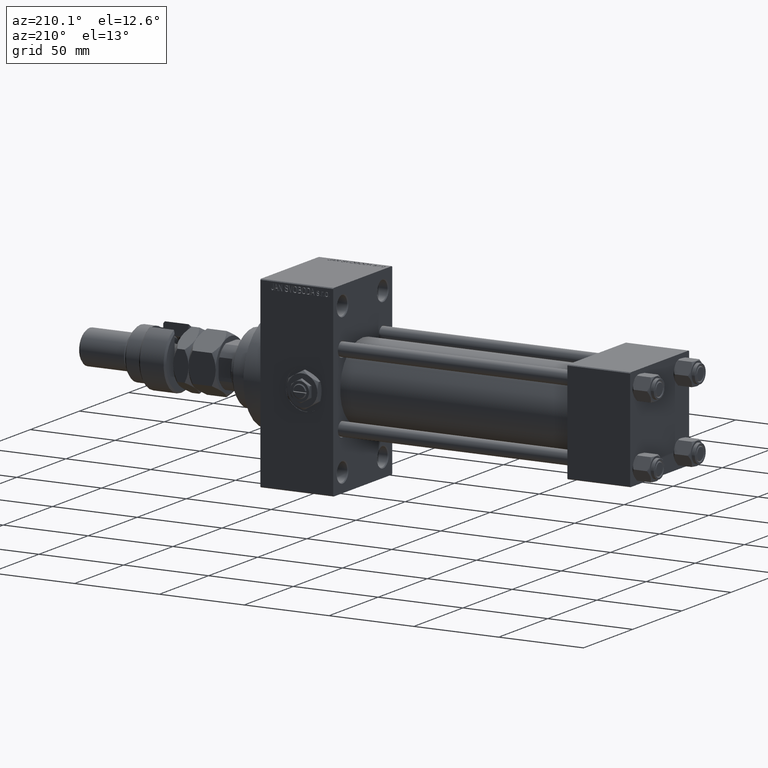
[diagram: clean part render]
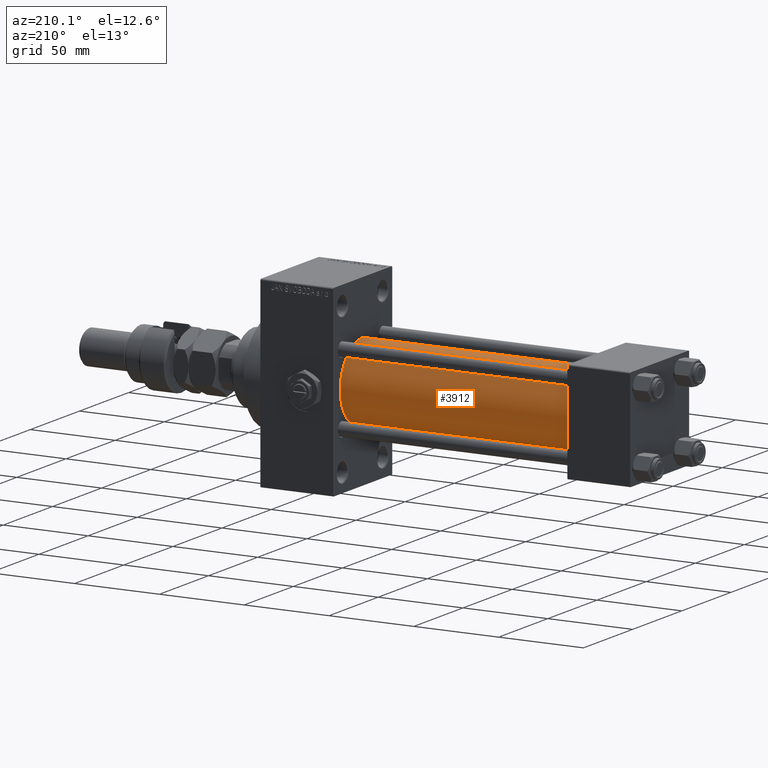
[diagram: same view with one face highlighted and labeled with its STEP entity id]
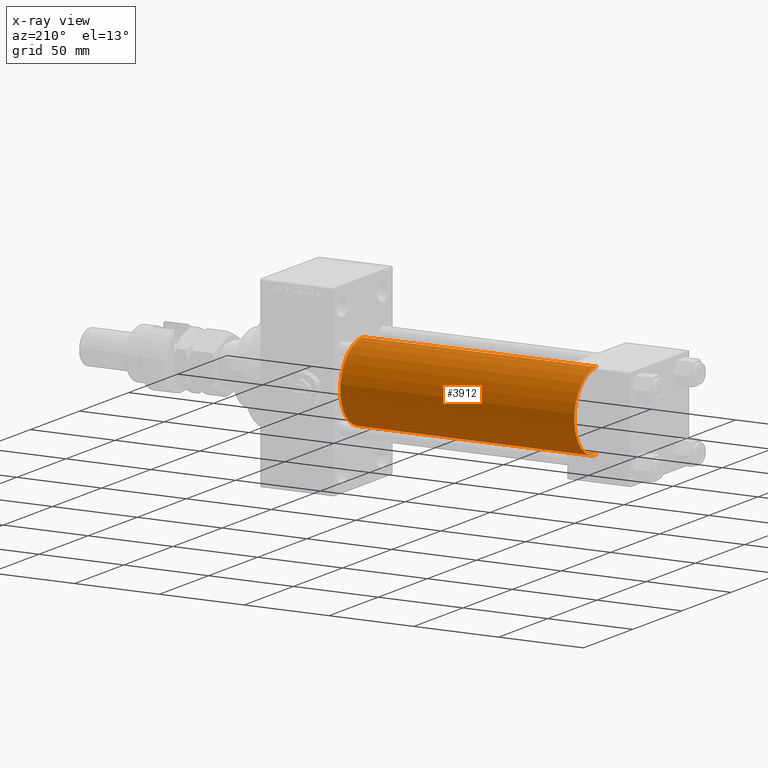
[diagram: x-ray of the same camera — body ghosted, the highlighted face saturated]
A machine part, auxiliary view. The second image highlights one B-rep face of the part: STEP entity #3912.
The next image is the same camera in x-ray: the body ghosted, the highlighted face saturated — about 0% of this face is hidden behind the body in this view.
In plain terms, the highlighted cylindrical surface (partial cylindrical patch) has radius 23 mm, axis along (-1, -0, -0).
Its self-contained STEP definition (entity closure, byte-faithful):
#3111 = DIRECTION ( 'NONE',  ( 0.000000000000000000, 0.000000000000000000, -1.000000000000000000 ) ) ;
#3247 = DIRECTION ( 'NONE',  ( -1.000000000000000000, -0.000000000000000000, -0.000000000000000000 ) ) ;
#3912 = ADVANCED_FACE ( 'NONE', ( #36663 ), #16992, .T. ) ;
#4435 = AXIS2_PLACEMENT_3D ( 'NONE', #50564, #46895, #3111 ) ;
#9899 = EDGE_CURVE ( 'NONE', #46203, #48675, #14511, .T. ) ;
#10275 = ORIENTED_EDGE ( 'NONE', *, *, #38229, .F. ) ;
#10312 = EDGE_CURVE ( 'NONE', #50562, #46203, #42070, .T. ) ;
#13126 = CARTESIAN_POINT ( 'NONE',  ( 37.00000000000000711, -2.602085213965210642E-15, 23.00000000000000000 ) ) ;
#13268 = LINE ( 'NONE', #38166, #17267 ) ;
#14511 = CIRCLE ( 'NONE', #33801, 23.00000000000000000 ) ;
#16992 = CYLINDRICAL_SURFACE ( 'NONE', #24327, 23.00000000000000000 ) ;
#17267 = VECTOR ( 'NONE', #18251, 1000.000000000000000 ) ;
#18251 = DIRECTION ( 'NONE',  ( -1.000000000000000000, -0.000000000000000000, -0.000000000000000000 ) ) ;
#18256 = ORIENTED_EDGE ( 'NONE', *, *, #9899, .T. ) ;
#23186 = CARTESIAN_POINT ( 'NONE',  ( 175.0000000000000284, 2.146024240737016609E-16, -23.00000000000000000 ) ) ;
#23456 = ORIENTED_EDGE ( 'NONE', *, *, #10312, .T. ) ;
#24327 = AXIS2_PLACEMENT_3D ( 'NONE', #48700, #45299, #28532 ) ;
#28052 = EDGE_CURVE ( 'NONE', #50562, #47821, #45443, .T. ) ;
#28532 = DIRECTION ( 'NONE',  ( 0.000000000000000000, 0.000000000000000000, 1.000000000000000000 ) ) ;
#30980 = ORIENTED_EDGE ( 'NONE', *, *, #28052, .F. ) ;
#33789 = CARTESIAN_POINT ( 'NONE',  ( 175.0000000000000284, 2.146024240737016609E-16, -23.00000000000000000 ) ) ;
#33801 = AXIS2_PLACEMENT_3D ( 'NONE', #47208, #39359, #51408 ) ;
#36663 = FACE_OUTER_BOUND ( 'NONE', #50849, .T. ) ;
#38166 = CARTESIAN_POINT ( 'NONE',  ( 175.0000000000000284, -2.602085213965210642E-15, 23.00000000000000000 ) ) ;
#38229 = EDGE_CURVE ( 'NONE', #47821, #48675, #13268, .T. ) ;
#39359 = DIRECTION ( 'NONE',  ( 1.000000000000000000, -0.000000000000000000, 0.000000000000000000 ) ) ;
#39635 = VECTOR ( 'NONE', #3247, 1000.000000000000000 ) ;
#42070 = LINE ( 'NONE', #23186, #39635 ) ;
#45047 = CARTESIAN_POINT ( 'NONE',  ( 175.0000000000000284, -2.602085213965210642E-15, 23.00000000000000000 ) ) ;
#45299 = DIRECTION ( 'NONE',  ( -1.000000000000000000, -0.000000000000000000, -0.000000000000000000 ) ) ;
#45443 = CIRCLE ( 'NONE', #4435, 23.00000000000000000 ) ;
#46203 = VERTEX_POINT ( 'NONE', #46534 ) ;
#46534 = CARTESIAN_POINT ( 'NONE',  ( 37.00000000000000711, 2.146024240737016609E-16, -23.00000000000000000 ) ) ;
#46895 = DIRECTION ( 'NONE',  ( 1.000000000000000000, 0.000000000000000000, 0.000000000000000000 ) ) ;
#47208 = CARTESIAN_POINT ( 'NONE',  ( 37.00000000000000711, -2.602085213965210642E-15, 0.000000000000000000 ) ) ;
#47821 = VERTEX_POINT ( 'NONE', #45047 ) ;
#48675 = VERTEX_POINT ( 'NONE', #13126 ) ;
#48700 = CARTESIAN_POINT ( 'NONE',  ( 175.0000000000000284, -2.602085213965210642E-15, 0.000000000000000000 ) ) ;
#50562 = VERTEX_POINT ( 'NONE', #33789 ) ;
#50564 = CARTESIAN_POINT ( 'NONE',  ( 175.0000000000000284, -2.602085213965210642E-15, 0.000000000000000000 ) ) ;
#50849 = EDGE_LOOP ( 'NONE', ( #30980, #23456, #18256, #10275 ) ) ;
#51408 = DIRECTION ( 'NONE',  ( 0.000000000000000000, 0.000000000000000000, 1.000000000000000000 ) ) ;